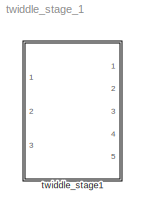
MODEL twiddle_stage_1
KIND model
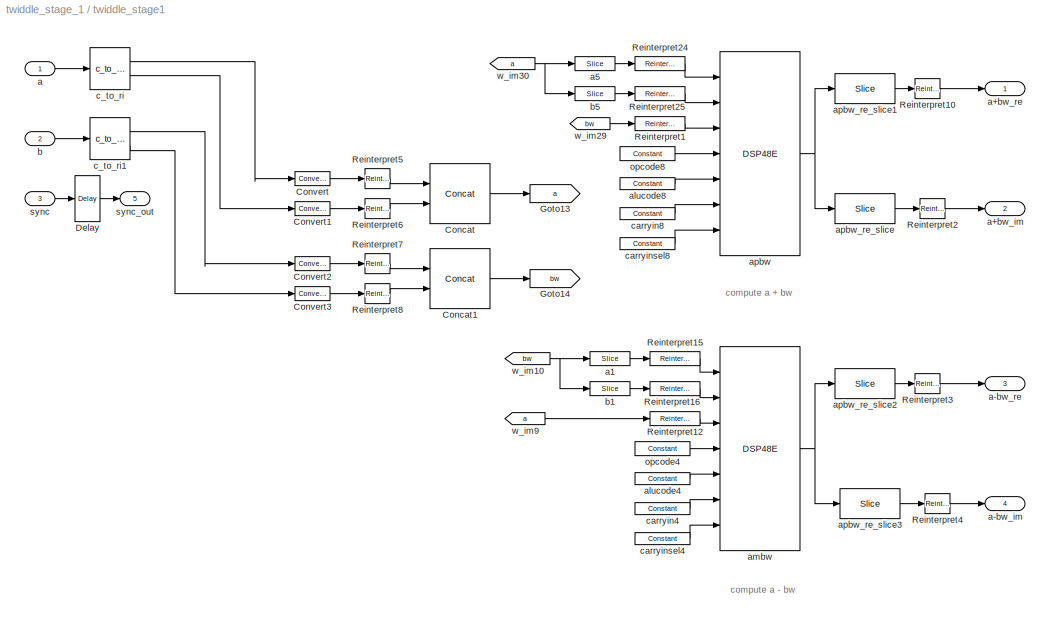
BLOCK [SubSystem] twiddle_stage1
  AncestorBlock = casper_library/FFTs/Twiddle/twiddle_pass_through
  FunctionWithSeparateData = off
  MaskDescription = Used in FFT library. Used when coefficients \nare 2^0 i.e just pass data through without delays
  MaskEnableString = on
  MaskHideContents = off
  MaskIconFrame = on
  MaskIconOpaque = on
  MaskIconRotate = none
  MaskIconUnits = autoscale
  MaskPortRotate = default
  MaskPromptString = Input Bit Width
  MaskSelfModifiable = on
  MaskStyleString = edit
  MaskToolTipString = on
  MaskTunableValueString = on
  MaskType = twiddle_pass_through
  MaskValueString = 18
  MaskVariables = input_bit_width=@1;
  MaskVisibilityString = on
  MinAlgLoopOccurrences = off
  Opaque = off
  Ports = [3, 5]
  PropExecContextOutsideSubsystem = off
  RTWSystemCode = Auto
  RequestExecContextInheritance = off
  SID = 55
BLOCK [Reference] twiddle_stage1/Concat  REF=xbsIndex_r4/Concat
  Ports = [2, 1]
  SID = 1532
  SourceBlock = xbsIndex_r4/Concat
  SourceType = Xilinx Bus Concatenator Block
  block_type = concat
  block_version = 11.3
  dbl_ovrd = off
  has_advanced_control = 0
  infoedit = Concatenates two or more inputs.  Output will be cast to an unsigned value with the binary point at zero.
  num_inputs = 2
  sg_icon_stat = 60,60,2,1,white,blue,0,16398980,right,,[ ],[ ]
  sg_mask_display = fprintf('','COMMENT: begin icon graphics');\npatch([0 60 60 0 0 ],[0 0 60 60 0 ],[0.77 0.82 0.91 ]);\nplot([0 60 60 0 0 ],[0 0 60 60 0 ]);\npatch([12.2 23.76 31.76 39.76 47.76 31.76 20.2 12.2 ],[38.88 38.88 46.88 38.88 46.88 46.88 46.88 38.88 ],[1 1 1 ]);\npatch([20.2 31.76 23.76 12.2 20.2 ],[30.88 30.88 38.88 38.88 30.88 ],[0.931 0.946 0.973 ]);\npatch([12.2 23.76 31.76 20.2 12.2 ],[22.88 22.88 3...<+417ch>
  sggui_pos = -1,-1,-1,-1
BLOCK [Reference] twiddle_stage1/Concat1  REF=xbsIndex_r4/Concat
  Ports = [2, 1]
  SID = 1533
  SourceBlock = xbsIndex_r4/Concat
  SourceType = Xilinx Bus Concatenator Block
  block_type = concat
  block_version = 11.3
  dbl_ovrd = off
  has_advanced_control = 0
  infoedit = Concatenates two or more inputs.  Output will be cast to an unsigned value with the binary point at zero.
  num_inputs = 2
  sg_icon_stat = 60,60,2,1,white,blue,0,16398980,right,,[ ],[ ]
  sg_mask_display = fprintf('','COMMENT: begin icon graphics');\npatch([0 60 60 0 0 ],[0 0 60 60 0 ],[0.77 0.82 0.91 ]);\nplot([0 60 60 0 0 ],[0 0 60 60 0 ]);\npatch([12.2 23.76 31.76 39.76 47.76 31.76 20.2 12.2 ],[38.88 38.88 46.88 38.88 46.88 46.88 46.88 38.88 ],[1 1 1 ]);\npatch([20.2 31.76 23.76 12.2 20.2 ],[30.88 30.88 38.88 38.88 30.88 ],[0.931 0.946 0.973 ]);\npatch([12.2 23.76 31.76 20.2 12.2 ],[22.88 22.88 3...<+417ch>
  sggui_pos = -1,-1,-1,-1
BLOCK [Reference] twiddle_stage1/Convert  REF=xbsIndex_r4/Convert
  Ports = [1, 1]
  SID = 1534
  SourceBlock = xbsIndex_r4/Convert
  SourceType = Xilinx Type Converter Block
  arith_type = Signed  (2's comp)
  bin_pt = 24 - (bw_bit_width - bw_bin_pt)
  block_type = convert
  block_version = 11.4
  dbl_ovrd = off
  en = off
  has_advanced_control = 0
  infoedit = Hardware notes: rounding and saturating require hardware resources; truncating and wrapping do not.
  latency = 0
  n_bits = 24
  overflow = Wrap
  pipeline = off
  quantization = Truncate
  sg_icon_stat = 35,14,1,1,white,blue,0,edca21da,right,,[ ],[ ]
  sg_mask_display = fprintf('','COMMENT: begin icon graphics');\npatch([0 35 35 0 0 ],[0 0 14 14 0 ],[0.77 0.82 0.91 ]);\nplot([0 35 35 0 0 ],[0 0 14 14 0 ]);\npatch([12.55 15.44 17.44 19.44 21.44 17.44 14.55 12.55 ],[9.22 9.22 11.22 9.22 11.22 11.22 11.22 9.22 ],[1 1 1 ]);\npatch([14.55 17.44 15.44 12.55 14.55 ],[7.22 7.22 9.22 9.22 7.22 ],[0.931 0.946 0.973 ]);\npatch([12.55 15.44 17.44 14.55 12.55 ],[5.22 5.22 7.2...<+311ch>  <repeated x4 — deduplicated; at blocks: Convert, Convert1, Convert2, Convert3>
  sggui_pos = -1,-1,-1,-1
  xl_area = [0,0,0,0,0,0,0]
  xl_use_area = off
BLOCK [Reference] twiddle_stage1/Convert1  REF=xbsIndex_r4/Convert
  Ports = [1, 1]
  SID = 1535
  SourceBlock = xbsIndex_r4/Convert
  SourceType = Xilinx Type Converter Block
  arith_type = Signed  (2's comp)
  bin_pt = 24 - (bw_bit_width - bw_bin_pt)
  block_type = convert
  block_version = 11.4
  dbl_ovrd = off
  en = off
  has_advanced_control = 0
  infoedit = Hardware notes: rounding and saturating require hardware resources; truncating and wrapping do not.
  latency = 0
  n_bits = 24
  overflow = Wrap
  pipeline = off
  quantization = Truncate
  sg_icon_stat = 35,14,1,1,white,blue,0,edca21da,right,,[ ],[ ]
  sggui_pos = -1,-1,-1,-1
  xl_area = [0,0,0,0,0,0,0]
  xl_use_area = off
BLOCK [Reference] twiddle_stage1/Convert2  REF=xbsIndex_r4/Convert
  Ports = [1, 1]
  SID = 1536
  SourceBlock = xbsIndex_r4/Convert
  SourceType = Xilinx Type Converter Block
  arith_type = Signed  (2's comp)
  bin_pt = 24 - (bw_bit_width - bw_bin_pt)
  block_type = convert
  block_version = 11.4
  dbl_ovrd = off
  en = off
  has_advanced_control = 0
  infoedit = Hardware notes: rounding and saturating require hardware resources; truncating and wrapping do not.
  latency = 0
  n_bits = 24
  overflow = Wrap
  pipeline = off
  quantization = Truncate
  sg_icon_stat = 35,14,1,1,white,blue,0,edca21da,right,,[ ],[ ]
  sggui_pos = -1,-1,-1,-1
  xl_area = [0,0,0,0,0,0,0]
  xl_use_area = off
BLOCK [Reference] twiddle_stage1/Convert3  REF=xbsIndex_r4/Convert
  Ports = [1, 1]
  SID = 1537
  SourceBlock = xbsIndex_r4/Convert
  SourceType = Xilinx Type Converter Block
  arith_type = Signed  (2's comp)
  bin_pt = 24 - (bw_bit_width - bw_bin_pt)
  block_type = convert
  block_version = 11.4
  dbl_ovrd = off
  en = off
  has_advanced_control = 0
  infoedit = Hardware notes: rounding and saturating require hardware resources; truncating and wrapping do not.
  latency = 0
  n_bits = 24
  overflow = Wrap
  pipeline = off
  quantization = Truncate
  sg_icon_stat = 35,14,1,1,white,blue,0,edca21da,right,,[ ],[ ]
  sggui_pos = -1,-1,-1,-1
  xl_area = [0,0,0,0,0,0,0]
  xl_use_area = off
BLOCK [Reference] twiddle_stage1/Delay  REF=xbsIndex_r4/Delay
  Ports = [1, 1]
  SID = 1580
  SourceBlock = xbsIndex_r4/Delay
  SourceType = Xilinx Delay Block
  block_type = delay
  block_version = 9.1.01
  dbl_ovrd = off
  en = off
  has_advanced_control = 0
  infoedit = Hardware notes: A delay line is a chain, each link of which is an SRL16 followed by a flip-flop.
  latency = add_latency + 1
  reg_retiming = off
  sg_icon_stat = 25,46,1,1,white,blue,0,83e6bb61,right,,[ ],[ ]
  sg_mask_display = fprintf('','COMMENT: begin icon graphics');\npatch([0 25 25 0 0 ],[0 0 46 46 0 ],[0.77 0.82 0.91 ]);\nplot([0 25 25 0 0 ],[0 0 46 46 0 ]);\npatch([5.325 9.66 12.66 15.66 18.66 12.66 8.325 5.325 ],[26.33 26.33 29.33 26.33 29.33 29.33 29.33 26.33 ],[1 1 1 ]);\npatch([8.325 12.66 9.66 5.325 8.325 ],[23.33 23.33 26.33 26.33 23.33 ],[0.931 0.946 0.973 ]);\npatch([5.325 9.66 12.66 8.325 5.325 ],[20.33 2...<+330ch>
  sggui_pos = 20,20,407,280
  xl_area = [0, 0, 0, 0, 0, 0, 0]
  xl_use_area = off
BLOCK [Goto] twiddle_stage1/Goto13
  GotoTag = a
  SID = 1538
  TagVisibility = local
BLOCK [Goto] twiddle_stage1/Goto14
  GotoTag = bw
  SID = 1539
  TagVisibility = local
BLOCK [Reference] twiddle_stage1/Reinterpret1  REF=xbsIndex_r4/Reinterpret
  Ports = [1, 1]
  SID = 1540
  SourceBlock = xbsIndex_r4/Reinterpret
  SourceType = Xilinx Type Reinterpreter Block
  arith_type = Signed  (2's comp)
  bin_pt = 0
  block_type = reinterpret
  block_version = 11.3
  force_arith_type = on
  force_bin_pt = off
  has_advanced_control = 0
  infoedit = Changes signal type without altering the binary representation.   You can changed the signal between signed and unsigned, and relocate the binary point.<br><br>Hardware notes: In hardware this block costs nothing.<br><br>Example:  Suppose the input is 6 bits wide, signed, with 2 fractional bits, and the output is forced to unsigned with 0 fractional bits.  Then an input of -2.0 (1110.00 in binary ...<+59ch>  <repeated x14 — deduplicated; at blocks: Reinterpret1, Reinterpret10, Reinterpret12, Reinterpret15, Reinterpret16, Reinterpret2, Reinterpret24, Reinterpret25, Reinterpret3, Reinterpret4, Reinterpret5, Reinterpret6, Reinterpret7, Reinterpret8>
  sg_icon_stat = 50,14,1,1,white,blue,0,6b04d0b0,right,,[ ],[ ]
  sg_mask_display = fprintf('','COMMENT: begin icon graphics');\npatch([0 50 50 0 0 ],[0 0 14 14 0 ],[0.77 0.82 0.91 ]);\nplot([0 50 50 0 0 ],[0 0 14 14 0 ]);\npatch([20.55 23.44 25.44 27.44 29.44 25.44 22.55 20.55 ],[9.22 9.22 11.22 9.22 11.22 11.22 11.22 9.22 ],[1 1 1 ]);\npatch([22.55 25.44 23.44 20.55 22.55 ],[7.22 7.22 9.22 9.22 7.22 ],[0.931 0.946 0.973 ]);\npatch([20.55 23.44 25.44 22.55 20.55 ],[5.22 5.22 7.2...<+301ch>  <repeated x3 — deduplicated; at blocks: Reinterpret1, Reinterpret12, Reinterpret24>
  sggui_pos = -1,-1,-1,-1
BLOCK [Reference] twiddle_stage1/Reinterpret10  REF=xbsIndex_r4/Reinterpret
  Ports = [1, 1]
  SID = 1541
  SourceBlock = xbsIndex_r4/Reinterpret
  SourceType = Xilinx Type Reinterpreter Block
  arith_type = Signed  (2's comp)
  bin_pt = input_bit_width-1
  block_type = reinterpret
  block_version = 11.3
  force_arith_type = on
  force_bin_pt = on
  has_advanced_control = 0
  sg_icon_stat = 25,20,1,1,white,blue,0,6b04d0b0,right,,[ ],[ ]
  sg_mask_display = fprintf('','COMMENT: begin icon graphics');\npatch([0 25 25 0 0 ],[0 0 20 20 0 ],[0.77 0.82 0.91 ]);\nplot([0 25 25 0 0 ],[0 0 20 20 0 ]);\npatch([7.55 10.44 12.44 14.44 16.44 12.44 9.55 7.55 ],[12.22 12.22 14.22 12.22 14.22 14.22 14.22 12.22 ],[1 1 1 ]);\npatch([9.55 12.44 10.44 7.55 9.55 ],[10.22 10.22 12.22 12.22 10.22 ],[0.931 0.946 0.973 ]);\npatch([7.55 10.44 12.44 9.55 7.55 ],[8.22 8.22 10....<+302ch>  <repeated x7 — deduplicated; at blocks: Reinterpret10, Reinterpret2, Reinterpret3, Reinterpret4, Reinterpret6, Reinterpret7, Reinterpret8>
  sggui_pos = 0,0,372,364
BLOCK [Reference] twiddle_stage1/Reinterpret12  REF=xbsIndex_r4/Reinterpret
  Ports = [1, 1]
  SID = 1542
  SourceBlock = xbsIndex_r4/Reinterpret
  SourceType = Xilinx Type Reinterpreter Block
  arith_type = Signed  (2's comp)
  bin_pt = 0
  block_type = reinterpret
  block_version = 11.3
  force_arith_type = on
  force_bin_pt = off
  has_advanced_control = 0
  sg_icon_stat = 50,14,1,1,white,blue,0,6b04d0b0,right,,[ ],[ ]
  sggui_pos = -1,-1,-1,-1
BLOCK [Reference] twiddle_stage1/Reinterpret15  REF=xbsIndex_r4/Reinterpret
  Ports = [1, 1]
  SID = 1543
  SourceBlock = xbsIndex_r4/Reinterpret
  SourceType = Xilinx Type Reinterpreter Block
  arith_type = Signed  (2's comp)
  bin_pt = 0
  block_type = reinterpret
  block_version = 11.3
  force_arith_type = on
  force_bin_pt = off
  has_advanced_control = 0
  sg_icon_stat = 50,14,1,1,white,blue,0,6b04d0b0,right,,[ ],[ ]
  sg_mask_display = fprintf('','COMMENT: begin icon graphics');\npatch([0 50 50 0 0 ],[0 0 14 14 0 ],[0.77 0.82 0.91 ]);\nplot([0 50 50 0 0 ],[0 0 14 14 0 ]);\npatch([20.55 23.44 25.44 27.44 29.44 25.44 22.55 20.55 ],[9.22 9.22 11.22 9.22 11.22 11.22 11.22 9.22 ],[1 1 1 ]);\npatch([22.55 25.44 23.44 20.55 22.55 ],[7.22 7.22 9.22 9.22 7.22 ],[0.931 0.946 0.973 ]);\npatch([20.55 23.44 25.44 22.55 20.55 ],[5.22 5.22 7.2...<+303ch>  <repeated x3 — deduplicated; at blocks: Reinterpret15, Reinterpret16, Reinterpret25>
  sggui_pos = -1,-1,-1,-1
BLOCK [Reference] twiddle_stage1/Reinterpret16  REF=xbsIndex_r4/Reinterpret
  Ports = [1, 1]
  SID = 1544
  SourceBlock = xbsIndex_r4/Reinterpret
  SourceType = Xilinx Type Reinterpreter Block
  arith_type = Signed  (2's comp)
  bin_pt = 0
  block_type = reinterpret
  block_version = 11.3
  force_arith_type = on
  force_bin_pt = off
  has_advanced_control = 0
  sg_icon_stat = 50,14,1,1,white,blue,0,6b04d0b0,right,,[ ],[ ]
  sggui_pos = -1,-1,-1,-1
BLOCK [Reference] twiddle_stage1/Reinterpret2  REF=xbsIndex_r4/Reinterpret
  Ports = [1, 1]
  SID = 1581
  SourceBlock = xbsIndex_r4/Reinterpret
  SourceType = Xilinx Type Reinterpreter Block
  arith_type = Signed  (2's comp)
  bin_pt = input_bit_width-1
  block_type = reinterpret
  block_version = 11.3
  force_arith_type = on
  force_bin_pt = on
  has_advanced_control = 0
  sg_icon_stat = 25,20,1,1,white,blue,0,6b04d0b0,right,,[ ],[ ]
  sggui_pos = 0,0,372,364
BLOCK [Reference] twiddle_stage1/Reinterpret24  REF=xbsIndex_r4/Reinterpret
  Ports = [1, 1]
  SID = 1546
  SourceBlock = xbsIndex_r4/Reinterpret
  SourceType = Xilinx Type Reinterpreter Block
  arith_type = Signed  (2's comp)
  bin_pt = 0
  block_type = reinterpret
  block_version = 11.3
  force_arith_type = on
  force_bin_pt = off
  has_advanced_control = 0
  sg_icon_stat = 50,14,1,1,white,blue,0,6b04d0b0,right,,[ ],[ ]
  sggui_pos = -1,-1,-1,-1
BLOCK [Reference] twiddle_stage1/Reinterpret25  REF=xbsIndex_r4/Reinterpret
  Ports = [1, 1]
  SID = 1547
  SourceBlock = xbsIndex_r4/Reinterpret
  SourceType = Xilinx Type Reinterpreter Block
  arith_type = Signed  (2's comp)
  bin_pt = 0
  block_type = reinterpret
  block_version = 11.3
  force_arith_type = on
  force_bin_pt = off
  has_advanced_control = 0
  sg_icon_stat = 50,14,1,1,white,blue,0,6b04d0b0,right,,[ ],[ ]
  sggui_pos = -1,-1,-1,-1
BLOCK [Reference] twiddle_stage1/Reinterpret3  REF=xbsIndex_r4/Reinterpret
  Ports = [1, 1]
  SID = 1582
  SourceBlock = xbsIndex_r4/Reinterpret
  SourceType = Xilinx Type Reinterpreter Block
  arith_type = Signed  (2's comp)
  bin_pt = input_bit_width-1
  block_type = reinterpret
  block_version = 11.3
  force_arith_type = on
  force_bin_pt = on
  has_advanced_control = 0
  sg_icon_stat = 25,20,1,1,white,blue,0,6b04d0b0,right,,[ ],[ ]
  sggui_pos = 0,0,372,364
BLOCK [Reference] twiddle_stage1/Reinterpret4  REF=xbsIndex_r4/Reinterpret
  Ports = [1, 1]
  SID = 1583
  SourceBlock = xbsIndex_r4/Reinterpret
  SourceType = Xilinx Type Reinterpreter Block
  arith_type = Signed  (2's comp)
  bin_pt = input_bit_width-1
  block_type = reinterpret
  block_version = 11.3
  force_arith_type = on
  force_bin_pt = on
  has_advanced_control = 0
  sg_icon_stat = 25,20,1,1,white,blue,0,6b04d0b0,right,,[ ],[ ]
  sggui_pos = 0,0,372,364
BLOCK [Reference] twiddle_stage1/Reinterpret5  REF=xbsIndex_r4/Reinterpret
  Ports = [1, 1]
  SID = 1550
  SourceBlock = xbsIndex_r4/Reinterpret
  SourceType = Xilinx Type Reinterpreter Block
  arith_type = Unsigned
  bin_pt = 0
  block_type = reinterpret
  block_version = 11.3
  force_arith_type = on
  force_bin_pt = on
  has_advanced_control = 0
  sg_icon_stat = 25,20,1,1,white,blue,0,6b04d0b0,right,,[ ],[ ]
  sg_mask_display = fprintf('','COMMENT: begin icon graphics');\npatch([0 25 25 0 0 ],[0 0 20 20 0 ],[0.77 0.82 0.91 ]);\nplot([0 25 25 0 0 ],[0 0 20 20 0 ]);\npatch([7.55 10.44 12.44 14.44 16.44 12.44 9.55 7.55 ],[12.22 12.22 14.22 12.22 14.22 14.22 14.22 12.22 ],[1 1 1 ]);\npatch([9.55 12.44 10.44 7.55 9.55 ],[10.22 10.22 12.22 12.22 10.22 ],[0.931 0.946 0.973 ]);\npatch([7.55 10.44 12.44 9.55 7.55 ],[8.22 8.22 10....<+300ch>
  sggui_pos = 0,0,372,364
BLOCK [Reference] twiddle_stage1/Reinterpret6  REF=xbsIndex_r4/Reinterpret
  Ports = [1, 1]
  SID = 1551
  SourceBlock = xbsIndex_r4/Reinterpret
  SourceType = Xilinx Type Reinterpreter Block
  arith_type = Unsigned
  bin_pt = 0
  block_type = reinterpret
  block_version = 11.3
  force_arith_type = on
  force_bin_pt = on
  has_advanced_control = 0
  sg_icon_stat = 25,20,1,1,white,blue,0,6b04d0b0,right,,[ ],[ ]
  sggui_pos = 0,0,372,364
BLOCK [Reference] twiddle_stage1/Reinterpret7  REF=xbsIndex_r4/Reinterpret
  Ports = [1, 1]
  SID = 1552
  SourceBlock = xbsIndex_r4/Reinterpret
  SourceType = Xilinx Type Reinterpreter Block
  arith_type = Unsigned
  bin_pt = 0
  block_type = reinterpret
  block_version = 11.3
  force_arith_type = on
  force_bin_pt = on
  has_advanced_control = 0
  sg_icon_stat = 25,20,1,1,white,blue,0,6b04d0b0,right,,[ ],[ ]
  sggui_pos = 0,0,372,364
BLOCK [Reference] twiddle_stage1/Reinterpret8  REF=xbsIndex_r4/Reinterpret
  Ports = [1, 1]
  SID = 1553
  SourceBlock = xbsIndex_r4/Reinterpret
  SourceType = Xilinx Type Reinterpreter Block
  arith_type = Unsigned
  bin_pt = 0
  block_type = reinterpret
  block_version = 11.3
  force_arith_type = on
  force_bin_pt = on
  has_advanced_control = 0
  sg_icon_stat = 25,20,1,1,white,blue,0,6b04d0b0,right,,[ ],[ ]
  sggui_pos = 0,0,372,364
BLOCK [Inport] twiddle_stage1/a
  IconDisplay = Port number
  SID = 1527
BLOCK [Outport] twiddle_stage1/a+bw_im
  IconDisplay = Port number
  Port = 2
  SID = 1577
BLOCK [Outport] twiddle_stage1/a+bw_re
  IconDisplay = Port number
  SID = 1576
BLOCK [Outport] twiddle_stage1/a-bw_im
  IconDisplay = Port number
  Port = 4
  SID = 1579
BLOCK [Outport] twiddle_stage1/a-bw_re
  IconDisplay = Port number
  Port = 3
  SID = 1578
BLOCK [Reference] twiddle_stage1/a1  REF=xbsIndex_r4/Slice
  Ports = [1, 1]
  SID = 1554
  SourceBlock = xbsIndex_r4/Slice
  SourceType = Xilinx Bit Slice Extractor Block
  base0 = LSB of Input
  base1 = MSB of Input
  bit0 = 18
  bit1 = 0
  block_type = slice
  block_version = 11.3
  boolean_output = off
  dbl_ovrd = off
  has_advanced_control = 0
  infoedit = Extracts a given range of bits from each input sample and presents it at the output.  The output type is ordinarily unsigned with binary point at zero, but can be Boolean when the slice is one bit wide.<br><br>Hardware notes: In hardware this block costs nothing.  <repeated x8 — deduplicated; at blocks: a1, a5, apbw_re_slice, apbw_re_slice1, apbw_re_slice2, apbw_re_slice3, b1, b5>
  mode = Upper Bit Location + Width
  nbits = 30
  sg_icon_stat = 40,14,1,1,white,blue,0,1fd851a7,right,,[ ],[ ]
  sg_mask_display = fprintf('','COMMENT: begin icon graphics');\npatch([0 40 40 0 0 ],[0 0 14 14 0 ],[0.77 0.82 0.91 ]);\nplot([0 40 40 0 0 ],[0 0 14 14 0 ]);\npatch([15.55 18.44 20.44 22.44 24.44 20.44 17.55 15.55 ],[9.22 9.22 11.22 9.22 11.22 11.22 11.22 9.22 ],[1 1 1 ]);\npatch([17.55 20.44 18.44 15.55 17.55 ],[7.22 7.22 9.22 9.22 7.22 ],[0.931 0.946 0.973 ]);\npatch([15.55 18.44 20.44 17.55 15.55 ],[5.22 5.22 7.2...<+312ch>  <repeated x4 — deduplicated; at blocks: a1, a5, b1, b5>
  sggui_pos = 851,25,537,482
BLOCK [Reference] twiddle_stage1/a5  REF=xbsIndex_r4/Slice
  Ports = [1, 1]
  SID = 1555
  SourceBlock = xbsIndex_r4/Slice
  SourceType = Xilinx Bit Slice Extractor Block
  base0 = LSB of Input
  base1 = MSB of Input
  bit0 = 18
  bit1 = 0
  block_type = slice
  block_version = 11.3
  boolean_output = off
  dbl_ovrd = off
  has_advanced_control = 0
  mode = Upper Bit Location + Width
  nbits = 30
  sg_icon_stat = 40,14,1,1,white,blue,0,1fd851a7,right,,[ ],[ ]
  sggui_pos = -1,-1,-1,-1
BLOCK [Reference] twiddle_stage1/alucode4  REF=xbsIndex_r4/Constant
  Ports = [0, 1]
  SID = 1556
  SourceBlock = xbsIndex_r4/Constant
  SourceType = Xilinx Constant Block Block
  arith_type = Unsigned
  bin_pt = 0
  block_type = constant
  block_version = 10.1.3
  carry = CIN
  const = 3
  dbl_ovrd = off
  dsp48_infoedit = The use of this block for DSP48 instructions is deprecated.  Please use the Opmode block.
  equ = P=C
  explicit_period = on
  has_advanced_control = 0
  inp1 = P
  inp2 = PCIN>>17
  n_bits = 4
  opr = +
  opselect = C
  period = 1
  sg_icon_stat = 55,12,0,1,white,blue,0,279a71c8,right,,[ ],[ ]
  sg_mask_display = fprintf('','COMMENT: begin icon graphics');\npatch([0 55 55 0 0 ],[0 0 12 12 0 ],[0.77 0.82 0.91 ]);\nplot([0 55 55 0 0 ],[0 0 12 12 0 ]);\npatch([24.775 26.22 27.22 28.22 29.22 27.22 25.775 24.775 ],[7.11 7.11 8.11 7.11 8.11 8.11 8.11 7.11 ],[1 1 1 ]);\npatch([25.775 27.22 26.22 24.775 25.775 ],[6.11 6.11 7.11 7.11 6.11 ],[0.931 0.946 0.973 ]);\npatch([24.775 26.22 27.22 25.775 24.775 ],[5.11 5.1...<+314ch>  <repeated x6 — deduplicated; at blocks: alucode4, alucode8, carryin4, carryin8, carryinsel4, carryinsel8>
  sggui_pos = 20,20,400,346
BLOCK [Reference] twiddle_stage1/alucode8  REF=xbsIndex_r4/Constant
  Ports = [0, 1]
  SID = 1557
  SourceBlock = xbsIndex_r4/Constant
  SourceType = Xilinx Constant Block Block
  arith_type = Unsigned
  bin_pt = 0
  block_type = constant
  block_version = 10.1.3
  carry = CIN
  const = 0
  dbl_ovrd = off
  dsp48_infoedit = The use of this block for DSP48 instructions is deprecated.  Please use the Opmode block.
  equ = P=C
  explicit_period = on
  has_advanced_control = 0
  inp1 = P
  inp2 = PCIN>>17
  n_bits = 4
  opr = +
  opselect = C
  period = 1
  sg_icon_stat = 55,12,0,1,white,blue,0,bf4ddd8b,right,,[ ],[ ]
  sggui_pos = 20,20,400,346
BLOCK [Reference] twiddle_stage1/ambw  REF=xbsIndex_r4/DSP48E
  Ports = [7, 1]
  SID = 1558
  SourceBlock = xbsIndex_r4/DSP48E
  SourceType = Xilinx DSP48E Block
  addsub_mode = TWO24
  block_type = dsp48e
  block_version = 10.1.3
  en_a1 = off
  en_a2 = off
  en_all = off
  en_alumode = off
  en_b1 = off
  en_b2 = off
  en_c = off
  en_carry_in = off
  en_ctrl = off
  en_mult = off
  en_multcarryin = off
  en_p = off
  has_advanced_control = 0
  mask_from_creg = off
  pattern = '000000000000'
  pattern_from_creg = off
  pattern_mask = '3FFFFFFFFFFF'
  pipeline_a = 1
  pipeline_acout = 1
  pipeline_alumode = on
  pipeline_b = 1
  pipeline_bcout = 1
  pipeline_c = on
  pipeline_carryin = on
  pipeline_carryinsel = on
  pipeline_mult = on
  pipeline_opmode = on
  pipeline_p = on
  reset_preg = off
  rst_a = off
  rst_all = off
  rst_alumode = off
  rst_b = off
  rst_c = off
  rst_carry_in = off
  rst_ctrl = off
  rst_mult = off
  rst_p = off
  sel_rounding_mask = Select mask
  sg_icon_stat = 80,204,7,1,white,blue,0,51584ea8,right,,[ ],[ ]
  sg_mask_display = fprintf('','COMMENT: begin icon graphics');\npatch([0 80 80 0 0 ],[0 0 204 204 0 ],[0.77 0.82 0.91 ]);\nplot([0 80 80 0 0 ],[0 0 204 204 0 ]);\npatch([15.525 31.42 42.42 53.42 64.42 42.42 26.525 15.525 ],[114.21 114.21 125.21 114.21 125.21 125.21 125.21 114.21 ],[1 1 1 ]);\npatch([26.525 42.42 31.42 15.525 26.525 ],[103.21 103.21 114.21 114.21 103.21 ],[0.931 0.946 0.973 ]);\npatch([15.525 31.42 4...<+685ch>
  sggui_pos = 113,168,544,804
  use_a = Direct from A Port
  use_acout = off
  use_b = Direct from B Port
  use_bcout = off
  use_carrycascin = off
  use_carrycascout = off
  use_carryout = off
  use_creg = on
  use_multsignin = off
  use_multsignout = off
  use_op = off
  use_overflow = off
  use_patternbdetect = off
  use_patterndetect = off
  use_pcin = off
  use_pcout = off
  use_synth_model = off
  use_underflow = off
  xl_area = [0,0,0,0,0,0,0]
  xl_use_area = off
  xl_useadderonly = off
BLOCK [Reference] twiddle_stage1/apbw  REF=xbsIndex_r4/DSP48E
  Ports = [7, 1]
  SID = 1559
  SourceBlock = xbsIndex_r4/DSP48E
  SourceType = Xilinx DSP48E Block
  addsub_mode = TWO24
  block_type = dsp48e
  block_version = 10.1.3
  en_a1 = off
  en_a2 = off
  en_all = off
  en_alumode = off
  en_b1 = off
  en_b2 = off
  en_c = off
  en_carry_in = off
  en_ctrl = off
  en_mult = off
  en_multcarryin = off
  en_p = off
  has_advanced_control = 0
  mask_from_creg = off
  pattern = '000000000000'
  pattern_from_creg = off
  pattern_mask = '3FFFFFFFFFFF'
  pipeline_a = 1
  pipeline_acout = 1
  pipeline_alumode = on
  pipeline_b = 1
  pipeline_bcout = 1
  pipeline_c = on
  pipeline_carryin = on
  pipeline_carryinsel = on
  pipeline_mult = on
  pipeline_opmode = on
  pipeline_p = on
  reset_preg = off
  rst_a = off
  rst_all = off
  rst_alumode = off
  rst_b = off
  rst_c = off
  rst_carry_in = off
  rst_ctrl = off
  rst_mult = off
  rst_p = off
  sel_rounding_mask = Select mask
  sg_icon_stat = 80,204,7,1,white,blue,0,51584ea8,right,,[ ],[ ]
  sg_mask_display = fprintf('','COMMENT: begin icon graphics');\npatch([0 80 80 0 0 ],[0 0 204 204 0 ],[0.77 0.82 0.91 ]);\nplot([0 80 80 0 0 ],[0 0 204 204 0 ]);\npatch([15.525 31.42 42.42 53.42 64.42 42.42 26.525 15.525 ],[114.21 114.21 125.21 114.21 125.21 125.21 125.21 114.21 ],[1 1 1 ]);\npatch([26.525 42.42 31.42 15.525 26.525 ],[103.21 103.21 114.21 114.21 103.21 ],[0.931 0.946 0.973 ]);\npatch([15.525 31.42 4...<+685ch>
  sggui_pos = 42,25,544,804
  use_a = Direct from A Port
  use_acout = off
  use_b = Direct from B Port
  use_bcout = off
  use_carrycascin = off
  use_carrycascout = off
  use_carryout = off
  use_creg = on
  use_multsignin = off
  use_multsignout = off
  use_op = off
  use_overflow = off
  use_patternbdetect = off
  use_patterndetect = off
  use_pcin = off
  use_pcout = off
  use_synth_model = off
  use_underflow = off
  xl_area = [0,0,0,0,0,0,0]
  xl_use_area = off
  xl_useadderonly = off
BLOCK [Reference] twiddle_stage1/apbw_re_slice  REF=xbsIndex_r4/Slice
  Ports = [1, 1]
  SID = 1560
  SourceBlock = xbsIndex_r4/Slice
  SourceType = Xilinx Bit Slice Extractor Block
  base0 = LSB of Input
  base1 = MSB of Input
  bit0 = 0
  bit1 = 0
  block_type = slice
  block_version = 11.3
  boolean_output = off
  dbl_ovrd = off
  has_advanced_control = 0
  mode = Lower Bit Location + Width
  nbits = 24
  sg_icon_stat = 60,30,1,1,white,blue,0,1fd851a7,right,,[ ],[ ]
  sg_mask_display = fprintf('','COMMENT: begin icon graphics');\npatch([0 60 60 0 0 ],[0 0 30 30 0 ],[0.77 0.82 0.91 ]);\nplot([0 60 60 0 0 ],[0 0 30 30 0 ]);\npatch([21.1 26.88 30.88 34.88 38.88 30.88 25.1 21.1 ],[19.44 19.44 23.44 19.44 23.44 23.44 23.44 19.44 ],[1 1 1 ]);\npatch([25.1 30.88 26.88 21.1 25.1 ],[15.44 15.44 19.44 19.44 15.44 ],[0.931 0.946 0.973 ]);\npatch([21.1 26.88 30.88 25.1 21.1 ],[11.44 11.44 1...<+317ch>  <repeated x4 — deduplicated; at blocks: apbw_re_slice, apbw_re_slice1, apbw_re_slice2, apbw_re_slice3>
  sggui_pos = -1,-1,-1,-1
BLOCK [Reference] twiddle_stage1/apbw_re_slice1  REF=xbsIndex_r4/Slice
  Ports = [1, 1]
  SID = 1561
  SourceBlock = xbsIndex_r4/Slice
  SourceType = Xilinx Bit Slice Extractor Block
  base0 = LSB of Input
  base1 = MSB of Input
  bit0 = 24
  bit1 = 0
  block_type = slice
  block_version = 11.3
  boolean_output = off
  dbl_ovrd = off
  has_advanced_control = 0
  mode = Upper Bit Location + Width
  nbits = 24
  sg_icon_stat = 60,30,1,1,white,blue,0,1fd851a7,right,,[ ],[ ]
  sggui_pos = 64,509,537,482
BLOCK [Reference] twiddle_stage1/apbw_re_slice2  REF=xbsIndex_r4/Slice
  Ports = [1, 1]
  SID = 1562
  SourceBlock = xbsIndex_r4/Slice
  SourceType = Xilinx Bit Slice Extractor Block
  base0 = LSB of Input
  base1 = MSB of Input
  bit0 = 24
  bit1 = 0
  block_type = slice
  block_version = 11.3
  boolean_output = off
  dbl_ovrd = off
  has_advanced_control = 0
  mode = Upper Bit Location + Width
  nbits = 24
  sg_icon_stat = 60,30,1,1,white,blue,0,1fd851a7,right,,[ ],[ ]
  sggui_pos = 783,545,537,482
BLOCK [Reference] twiddle_stage1/apbw_re_slice3  REF=xbsIndex_r4/Slice
  Ports = [1, 1]
  SID = 1563
  SourceBlock = xbsIndex_r4/Slice
  SourceType = Xilinx Bit Slice Extractor Block
  base0 = LSB of Input
  base1 = MSB of Input
  bit0 = 0
  bit1 = 0
  block_type = slice
  block_version = 11.3
  boolean_output = off
  dbl_ovrd = off
  has_advanced_control = 0
  mode = Lower Bit Location + Width
  nbits = 24
  sg_icon_stat = 60,30,1,1,white,blue,0,1fd851a7,right,,[ ],[ ]
  sggui_pos = -1,-1,-1,-1
BLOCK [Inport] twiddle_stage1/b
  IconDisplay = Port number
  Port = 2
  SID = 1527
BLOCK [Reference] twiddle_stage1/b1  REF=xbsIndex_r4/Slice
  Ports = [1, 1]
  SID = 1564
  SourceBlock = xbsIndex_r4/Slice
  SourceType = Xilinx Bit Slice Extractor Block
  base0 = LSB of Input
  base1 = MSB of Input
  bit0 = 0
  bit1 = 0
  block_type = slice
  block_version = 11.3
  boolean_output = off
  dbl_ovrd = off
  has_advanced_control = 0
  mode = Lower Bit Location + Width
  nbits = 18
  sg_icon_stat = 40,14,1,1,white,blue,0,1fd851a7,right,,[ ],[ ]
  sggui_pos = -1,-1,-1,-1
BLOCK [Reference] twiddle_stage1/b5  REF=xbsIndex_r4/Slice
  Ports = [1, 1]
  SID = 1565
  SourceBlock = xbsIndex_r4/Slice
  SourceType = Xilinx Bit Slice Extractor Block
  base0 = LSB of Input
  base1 = MSB of Input
  bit0 = 0
  bit1 = 0
  block_type = slice
  block_version = 11.3
  boolean_output = off
  dbl_ovrd = off
  has_advanced_control = 0
  mode = Lower Bit Location + Width
  nbits = 18
  sg_icon_stat = 40,14,1,1,white,blue,0,1fd851a7,right,,[ ],[ ]
  sggui_pos = -1,-1,-1,-1
BLOCK [Reference] twiddle_stage1/c_to_ri  REF=casper_library/Misc/c_to_ri  (lib defined in mdl_138b2fc3435f, mdl_4ed325b712b3, +2 more)
  AttributesFormatString = 18_17 r/i
  FunctionWithSeparateData = off
  Ports = [1, 2]
  RTWMemSecDataConstants = Inherit from model
  RTWMemSecDataInternal = Inherit from model
  RTWMemSecDataParameters = Inherit from model
  RTWMemSecFuncExecute = Inherit from model
  RTWMemSecFuncInitTerm = Inherit from model
  SID = 1527
  ShowPortLabels = FromPortIcon
  SourceBlock = casper_library/Misc/c_to_ri
  SourceType = c_to_ri
  SystemSampleTime = -1
  UserData = DataTag0
  UserDataPersistent = on
  bin_pt = input_bit_width-1
  n_bits = input_bit_width
BLOCK [Reference] twiddle_stage1/c_to_ri1  REF=casper_library/Misc/c_to_ri  (lib defined in mdl_138b2fc3435f, mdl_4ed325b712b3, +2 more)
  AttributesFormatString = 18_17 r/i
  FunctionWithSeparateData = off
  Ports = [1, 2]
  RTWMemSecDataConstants = Inherit from model
  RTWMemSecDataInternal = Inherit from model
  RTWMemSecDataParameters = Inherit from model
  RTWMemSecFuncExecute = Inherit from model
  RTWMemSecFuncInitTerm = Inherit from model
  SID = 1527
  ShowPortLabels = FromPortIcon
  SourceBlock = casper_library/Misc/c_to_ri
  SourceType = c_to_ri
  SystemSampleTime = -1
  UserData = DataTag1
  UserDataPersistent = on
  bin_pt = input_bit_width-1
  n_bits = input_bit_width
BLOCK [Reference] twiddle_stage1/carryin4  REF=xbsIndex_r4/Constant
  Ports = [0, 1]
  SID = 1566
  SourceBlock = xbsIndex_r4/Constant
  SourceType = Xilinx Constant Block Block
  arith_type = Unsigned
  bin_pt = 0
  block_type = constant
  block_version = 10.1.3
  carry = CIN
  const = 0
  dbl_ovrd = off
  dsp48_infoedit = The use of this block for DSP48 instructions is deprecated.  Please use the Opmode block.
  equ = P=C
  explicit_period = on
  has_advanced_control = 0
  inp1 = P
  inp2 = PCIN>>17
  n_bits = 1
  opr = +
  opselect = C
  period = 1
  sg_icon_stat = 55,12,0,1,white,blue,0,bf4ddd8b,right,,[ ],[ ]
  sggui_pos = 20,20,400,346
BLOCK [Reference] twiddle_stage1/carryin8  REF=xbsIndex_r4/Constant
  Ports = [0, 1]
  SID = 1567
  SourceBlock = xbsIndex_r4/Constant
  SourceType = Xilinx Constant Block Block
  arith_type = Unsigned
  bin_pt = 0
  block_type = constant
  block_version = 10.1.3
  carry = CIN
  const = 0
  dbl_ovrd = off
  dsp48_infoedit = The use of this block for DSP48 instructions is deprecated.  Please use the Opmode block.
  equ = P=C
  explicit_period = on
  has_advanced_control = 0
  inp1 = P
  inp2 = PCIN>>17
  n_bits = 1
  opr = +
  opselect = C
  period = 1
  sg_icon_stat = 55,12,0,1,white,blue,0,bf4ddd8b,right,,[ ],[ ]
  sggui_pos = 20,20,400,346
BLOCK [Reference] twiddle_stage1/carryinsel4  REF=xbsIndex_r4/Constant
  Ports = [0, 1]
  SID = 1568
  SourceBlock = xbsIndex_r4/Constant
  SourceType = Xilinx Constant Block Block
  arith_type = Unsigned
  bin_pt = 0
  block_type = constant
  block_version = 10.1.3
  carry = CIN
  const = 0
  dbl_ovrd = off
  dsp48_infoedit = The use of this block for DSP48 instructions is deprecated.  Please use the Opmode block.
  equ = P=C
  explicit_period = on
  has_advanced_control = 0
  inp1 = P
  inp2 = PCIN>>17
  n_bits = 3
  opr = +
  opselect = C
  period = 1
  sg_icon_stat = 55,12,0,1,white,blue,0,bf4ddd8b,right,,[ ],[ ]
  sggui_pos = 20,20,400,346
BLOCK [Reference] twiddle_stage1/carryinsel8  REF=xbsIndex_r4/Constant
  Ports = [0, 1]
  SID = 1569
  SourceBlock = xbsIndex_r4/Constant
  SourceType = Xilinx Constant Block Block
  arith_type = Unsigned
  bin_pt = 0
  block_type = constant
  block_version = 10.1.3
  carry = CIN
  const = 0
  dbl_ovrd = off
  dsp48_infoedit = The use of this block for DSP48 instructions is deprecated.  Please use the Opmode block.
  equ = P=C
  explicit_period = on
  has_advanced_control = 0
  inp1 = P
  inp2 = PCIN>>17
  n_bits = 3
  opr = +
  opselect = C
  period = 1
  sg_icon_stat = 55,12,0,1,white,blue,0,bf4ddd8b,right,,[ ],[ ]
  sggui_pos = 20,20,400,346
BLOCK [Reference] twiddle_stage1/opcode4  REF=xbsIndex_r4/Constant
  Ports = [0, 1]
  SID = 1570
  SourceBlock = xbsIndex_r4/Constant
  SourceType = Xilinx Constant Block Block
  arith_type = Unsigned
  bin_pt = 0
  block_type = constant
  block_version = 10.1.3
  carry = CIN
  const = 51
  dbl_ovrd = off
  dsp48_infoedit = The use of this block for DSP48 instructions is deprecated.  Please use the Opmode block.
  equ = P=C
  explicit_period = on
  has_advanced_control = 0
  inp1 = P
  inp2 = PCIN>>17
  n_bits = 7
  opr = +
  opselect = C
  period = 1
  sg_icon_stat = 55,14,0,1,white,blue,0,b654bd3a,right,,[ ],[ ]
  sg_mask_display = fprintf('','COMMENT: begin icon graphics');\npatch([0 55 55 0 0 ],[0 0 14 14 0 ],[0.77 0.82 0.91 ]);\nplot([0 55 55 0 0 ],[0 0 14 14 0 ]);\npatch([22.55 25.44 27.44 29.44 31.44 27.44 24.55 22.55 ],[9.22 9.22 11.22 9.22 11.22 11.22 11.22 9.22 ],[1 1 1 ]);\npatch([24.55 27.44 25.44 22.55 24.55 ],[7.22 7.22 9.22 9.22 7.22 ],[0.931 0.946 0.973 ]);\npatch([22.55 25.44 27.44 24.55 22.55 ],[5.22 5.22 7.2...<+307ch>
  sggui_pos = 660,25,473,439
BLOCK [Reference] twiddle_stage1/opcode8  REF=xbsIndex_r4/Constant
  Ports = [0, 1]
  SID = 1571
  SourceBlock = xbsIndex_r4/Constant
  SourceType = Xilinx Constant Block Block
  arith_type = Unsigned
  bin_pt = 0
  block_type = constant
  block_version = 10.1.3
  carry = CIN
  const = 15
  dbl_ovrd = off
  dsp48_infoedit = The use of this block for DSP48 instructions is deprecated.  Please use the Opmode block.
  equ = P=C
  explicit_period = on
  has_advanced_control = 0
  inp1 = P
  inp2 = PCIN>>17
  n_bits = 7
  opr = +
  opselect = C
  period = 1
  sg_icon_stat = 55,14,0,1,white,blue,0,1164c07c,right,,[ ],[ ]
  sg_mask_display = fprintf('','COMMENT: begin icon graphics');\npatch([0 55 55 0 0 ],[0 0 14 14 0 ],[0.77 0.82 0.91 ]);\nplot([0 55 55 0 0 ],[0 0 14 14 0 ]);\npatch([22.55 25.44 27.44 29.44 31.44 27.44 24.55 22.55 ],[9.22 9.22 11.22 9.22 11.22 11.22 11.22 9.22 ],[1 1 1 ]);\npatch([24.55 27.44 25.44 22.55 24.55 ],[7.22 7.22 9.22 9.22 7.22 ],[0.931 0.946 0.973 ]);\npatch([22.55 25.44 27.44 24.55 22.55 ],[5.22 5.22 7.2...<+307ch>
  sggui_pos = 20,20,400,346
BLOCK [Inport] twiddle_stage1/sync
  IconDisplay = Port number
  Port = 3
  SID = 1527
BLOCK [Outport] twiddle_stage1/sync_out
  IconDisplay = Port number
  Port = 5
  SID = 1527
BLOCK [From] twiddle_stage1/w_im10
  GotoTag = bw
  SID = 1572
BLOCK [From] twiddle_stage1/w_im29
  GotoTag = bw
  SID = 1573
BLOCK [From] twiddle_stage1/w_im30
  GotoTag = a
  SID = 1574
BLOCK [From] twiddle_stage1/w_im9
  GotoTag = a
  SID = 1575
ANNOTATION twiddle_stage1: compute a + bw
ANNOTATION twiddle_stage1: compute a - bw
LINE twiddle_stage1/Concat1:1 -> twiddle_stage1/Goto14:1
LINE twiddle_stage1/Concat:1 -> twiddle_stage1/Goto13:1
LINE twiddle_stage1/Convert1:1 -> twiddle_stage1/Reinterpret6:1
LINE twiddle_stage1/Convert2:1 -> twiddle_stage1/Reinterpret7:1
LINE twiddle_stage1/Convert3:1 -> twiddle_stage1/Reinterpret8:1
LINE twiddle_stage1/Convert:1 -> twiddle_stage1/Reinterpret5:1
LINE twiddle_stage1/Delay:1 -> twiddle_stage1/sync_out:1
LINE twiddle_stage1/Reinterpret10:1 -> twiddle_stage1/a+bw_re:1
LINE twiddle_stage1/Reinterpret12:1 -> twiddle_stage1/ambw:3
LINE twiddle_stage1/Reinterpret15:1 -> twiddle_stage1/ambw:1
LINE twiddle_stage1/Reinterpret16:1 -> twiddle_stage1/ambw:2
LINE twiddle_stage1/Reinterpret1:1 -> twiddle_stage1/apbw:3
LINE twiddle_stage1/Reinterpret24:1 -> twiddle_stage1/apbw:1
LINE twiddle_stage1/Reinterpret25:1 -> twiddle_stage1/apbw:2
LINE twiddle_stage1/Reinterpret2:1 -> twiddle_stage1/a+bw_im:1
LINE twiddle_stage1/Reinterpret3:1 -> twiddle_stage1/a-bw_re:1
LINE twiddle_stage1/Reinterpret4:1 -> twiddle_stage1/a-bw_im:1
LINE twiddle_stage1/Reinterpret5:1 -> twiddle_stage1/Concat:1
LINE twiddle_stage1/Reinterpret6:1 -> twiddle_stage1/Concat:2
LINE twiddle_stage1/Reinterpret7:1 -> twiddle_stage1/Concat1:1
LINE twiddle_stage1/Reinterpret8:1 -> twiddle_stage1/Concat1:2
LINE twiddle_stage1/a1:1 -> twiddle_stage1/Reinterpret15:1
LINE twiddle_stage1/a5:1 -> twiddle_stage1/Reinterpret24:1
LINE twiddle_stage1/a:1 -> twiddle_stage1/c_to_ri:1
LINE twiddle_stage1/alucode4:1 -> twiddle_stage1/ambw:5
LINE twiddle_stage1/alucode8:1 -> twiddle_stage1/apbw:5
NET twiddle_stage1/ambw:1 -> twiddle_stage1/apbw_re_slice2:1, twiddle_stage1/apbw_re_slice3:1
NET twiddle_stage1/apbw:1 -> twiddle_stage1/apbw_re_slice1:1, twiddle_stage1/apbw_re_slice:1
LINE twiddle_stage1/apbw_re_slice1:1 -> twiddle_stage1/Reinterpret10:1
LINE twiddle_stage1/apbw_re_slice2:1 -> twiddle_stage1/Reinterpret3:1
LINE twiddle_stage1/apbw_re_slice3:1 -> twiddle_stage1/Reinterpret4:1
LINE twiddle_stage1/apbw_re_slice:1 -> twiddle_stage1/Reinterpret2:1
LINE twiddle_stage1/b1:1 -> twiddle_stage1/Reinterpret16:1
LINE twiddle_stage1/b5:1 -> twiddle_stage1/Reinterpret25:1
LINE twiddle_stage1/b:1 -> twiddle_stage1/c_to_ri1:1
LINE twiddle_stage1/c_to_ri1:1 -> twiddle_stage1/Convert2:1
LINE twiddle_stage1/c_to_ri1:2 -> twiddle_stage1/Convert3:1
LINE twiddle_stage1/c_to_ri:1 -> twiddle_stage1/Convert:1
LINE twiddle_stage1/c_to_ri:2 -> twiddle_stage1/Convert1:1
LINE twiddle_stage1/carryin4:1 -> twiddle_stage1/ambw:6
LINE twiddle_stage1/carryin8:1 -> twiddle_stage1/apbw:6
LINE twiddle_stage1/carryinsel4:1 -> twiddle_stage1/ambw:7
LINE twiddle_stage1/carryinsel8:1 -> twiddle_stage1/apbw:7
LINE twiddle_stage1/opcode4:1 -> twiddle_stage1/ambw:4
LINE twiddle_stage1/opcode8:1 -> twiddle_stage1/apbw:4
LINE twiddle_stage1/sync:1 -> twiddle_stage1/Delay:1
NET twiddle_stage1/w_im10:1 -> twiddle_stage1/a1:1, twiddle_stage1/b1:1
LINE twiddle_stage1/w_im29:1 -> twiddle_stage1/Reinterpret1:1
NET twiddle_stage1/w_im30:1 -> twiddle_stage1/a5:1, twiddle_stage1/b5:1
LINE twiddle_stage1/w_im9:1 -> twiddle_stage1/Reinterpret12:1
note: NET lines group one-source signal fan-out (src -> all destinations, sorted); 1:1 wires keep LINE
